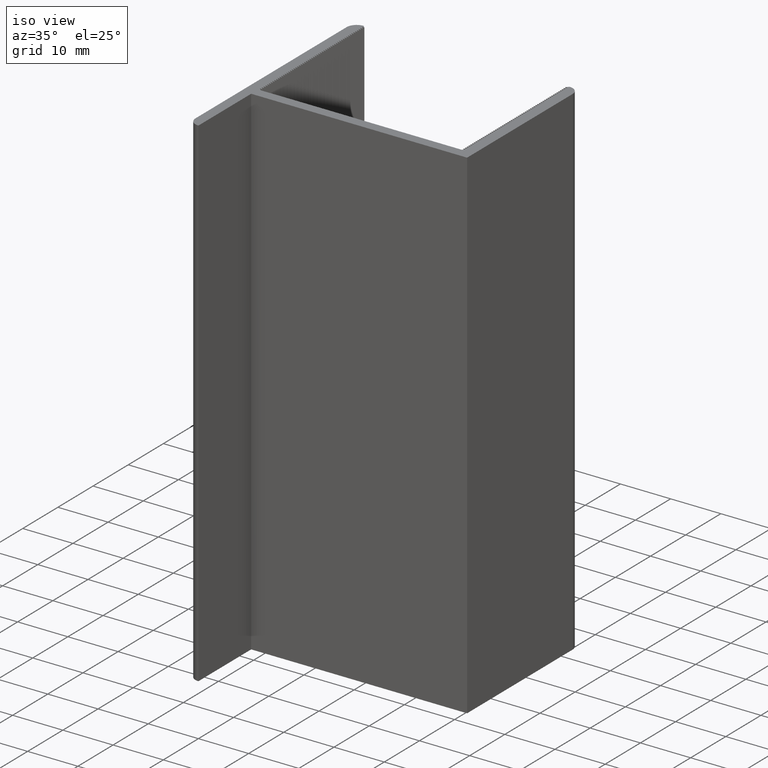
[diagram: clean part render]
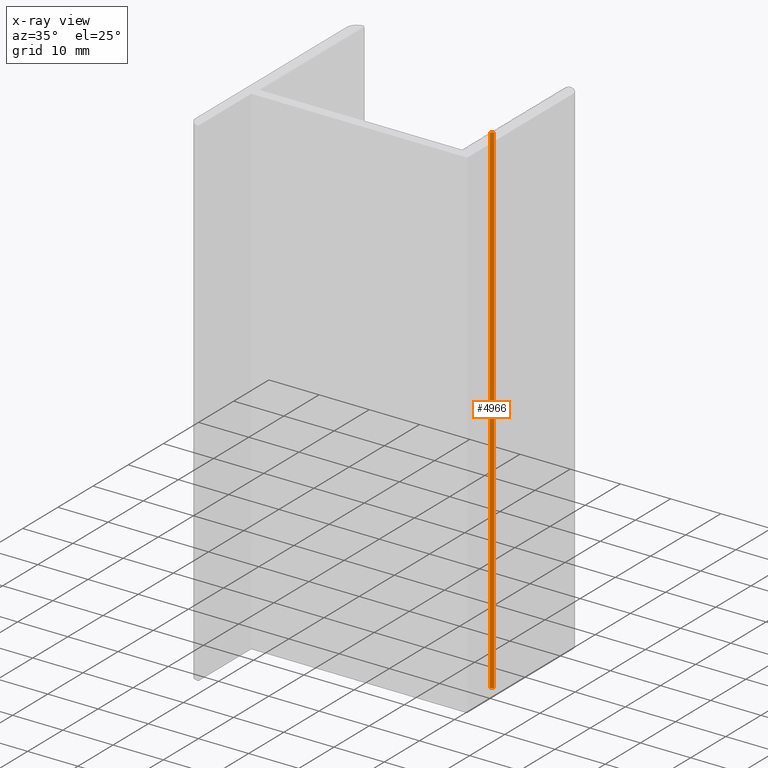
[diagram: x-ray — body ghosted, one internal face saturated and labeled with its STEP entity id]
A machine part, iso view, then the same camera in x-ray: the body is ghosted and one INTERNAL B-rep face — a face not visible from any outside direction — is saturated and labeled: STEP entity #4966.
In plain terms, the highlighted planar face has unit normal (-0.7071, 0.7071, 0).
Its self-contained STEP definition (entity closure, byte-faithful):
#55=FACE_OUTER_BOUND('',#303,.T.);
#303=EDGE_LOOP('',(#3338,#3339,#3340,#3341));
#613=LINE('',#6870,#1345);
#614=LINE('',#6873,#1346);
#615=LINE('',#6875,#1347);
#616=LINE('',#6876,#1348);
#1345=VECTOR('',#5596,100.);
#1346=VECTOR('',#5599,0.707106781186543);
#1347=VECTOR('',#5600,0.707106781186543);
#1348=VECTOR('',#5601,100.);
#2046=VERTEX_POINT('',#6866);
#2047=VERTEX_POINT('',#6868);
#2048=VERTEX_POINT('',#6872);
#2049=VERTEX_POINT('',#6874);
#2569=EDGE_CURVE('',#2046,#2047,#613,.T.);
#2570=EDGE_CURVE('',#2046,#2048,#614,.T.);
#2571=EDGE_CURVE('',#2049,#2047,#615,.T.);
#2572=EDGE_CURVE('',#2048,#2049,#616,.T.);
#3338=ORIENTED_EDGE('',*,*,#2570,.F.);
#3339=ORIENTED_EDGE('',*,*,#2569,.T.);
#3340=ORIENTED_EDGE('',*,*,#2571,.F.);
#3341=ORIENTED_EDGE('',*,*,#2572,.F.);
#4721=PLANE('',#5216);
#4966=ADVANCED_FACE('',(#55),#4721,.T.);
#5216=AXIS2_PLACEMENT_3D('',#6871,#5597,#5598);
#5596=DIRECTION('',(0.,0.,1.));
#5597=DIRECTION('center_axis',(-0.707106781186546,0.707106781186549,0.));
#5598=DIRECTION('ref_axis',(-0.707106781186549,-0.707106781186546,0.));
#5599=DIRECTION('',(0.707106781186549,0.707106781186546,0.));
#5600=DIRECTION('',(-0.707106781186549,-0.707106781186546,0.));
#5601=DIRECTION('',(0.,0.,1.));
#6866=CARTESIAN_POINT('',(20.,10.,0.));
#6868=CARTESIAN_POINT('',(20.,10.,100.));
#6870=CARTESIAN_POINT('',(20.,10.,0.));
#6871=CARTESIAN_POINT('Origin',(20.5,10.5,0.));
#6872=CARTESIAN_POINT('',(20.5,10.5,0.));
#6873=CARTESIAN_POINT('',(20.,10.,0.));
#6874=CARTESIAN_POINT('',(20.5,10.5,100.));
#6875=CARTESIAN_POINT('',(20.,10.,100.));
#6876=CARTESIAN_POINT('',(20.5,10.5,0.));